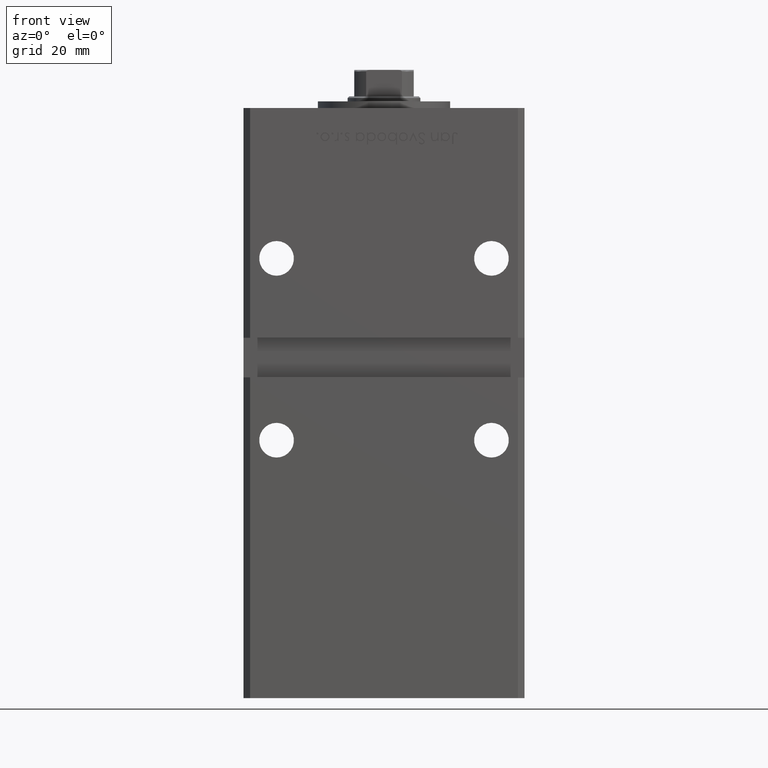
[diagram: clean part render]
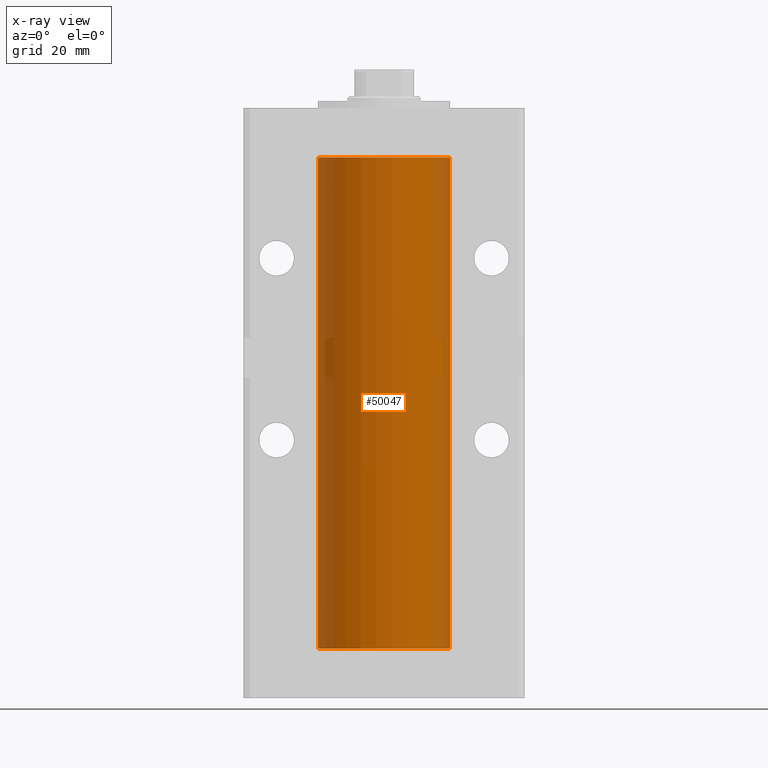
[diagram: x-ray — body ghosted, one internal face saturated and labeled with its STEP entity id]
A machine part, front view, then the same camera in x-ray: the body is ghosted and one INTERNAL B-rep face — a face not visible from any outside direction — is saturated and labeled: STEP entity #50047.
In plain terms, the highlighted cylindrical surface (partial cylindrical patch) has radius 20 mm, axis along (-0, -0, -1).
Its self-contained STEP definition (entity closure, byte-faithful):
#220 = VECTOR ( 'NONE', #41365, 1000.000000000000000 ) ;
#2378 = FACE_OUTER_BOUND ( 'NONE', #25528, .T. ) ;
#4046 = ORIENTED_EDGE ( 'NONE', *, *, #32560, .F. ) ;
#6415 = AXIS2_PLACEMENT_3D ( 'NONE', #35686, #39184, #6936 ) ;
#6936 = DIRECTION ( 'NONE',  ( -1.000000000000000000, 0.000000000000000000, 0.000000000000000000 ) ) ;
#7555 = CARTESIAN_POINT ( 'NONE',  ( -20.00000000000000000, 0.000000000000000000, 148.5000000000000000 ) ) ;
#8481 = VERTEX_POINT ( 'NONE', #13598 ) ;
#8987 = EDGE_CURVE ( 'NONE', #26773, #14562, #49118, .T. ) ;
#9015 = VERTEX_POINT ( 'NONE', #50027 ) ;
#9123 = LINE ( 'NONE', #49459, #220 ) ;
#9281 = CARTESIAN_POINT ( 'NONE',  ( 20.00000000000000000, 2.449293598294706513E-15, 148.5000000000000000 ) ) ;
#13598 = CARTESIAN_POINT ( 'NONE',  ( 20.00000000000000000, 2.449293598294706513E-15, 0.000000000000000000 ) ) ;
#14165 = CARTESIAN_POINT ( 'NONE',  ( 0.000000000000000000, 0.000000000000000000, 0.000000000000000000 ) ) ;
#14562 = VERTEX_POINT ( 'NONE', #9281 ) ;
#14931 = CARTESIAN_POINT ( 'NONE',  ( -20.00000000000000000, 0.000000000000000000, 148.5000000000000000 ) ) ;
#17899 = VECTOR ( 'NONE', #43140, 1000.000000000000000 ) ;
#22473 = DIRECTION ( 'NONE',  ( -0.000000000000000000, 0.000000000000000000, 1.000000000000000000 ) ) ;
#25528 = EDGE_LOOP ( 'NONE', ( #32510, #51997, #4046, #25901 ) ) ;
#25901 = ORIENTED_EDGE ( 'NONE', *, *, #28673, .F. ) ;
#26773 = VERTEX_POINT ( 'NONE', #7555 ) ;
#28673 = EDGE_CURVE ( 'NONE', #26773, #9015, #35081, .T. ) ;
#32510 = ORIENTED_EDGE ( 'NONE', *, *, #8987, .T. ) ;
#32560 = EDGE_CURVE ( 'NONE', #9015, #8481, #50656, .T. ) ;
#34313 = DIRECTION ( 'NONE',  ( 1.000000000000000000, 0.000000000000000000, 0.000000000000000000 ) ) ;
#35081 = LINE ( 'NONE', #14931, #17899 ) ;
#35686 = CARTESIAN_POINT ( 'NONE',  ( 0.000000000000000000, 0.000000000000000000, 148.5000000000000000 ) ) ;
#37129 = DIRECTION ( 'NONE',  ( -0.000000000000000000, 0.000000000000000000, 1.000000000000000000 ) ) ;
#39184 = DIRECTION ( 'NONE',  ( -0.000000000000000000, -0.000000000000000000, -1.000000000000000000 ) ) ;
#41365 = DIRECTION ( 'NONE',  ( -0.000000000000000000, -0.000000000000000000, -1.000000000000000000 ) ) ;
#41947 = CARTESIAN_POINT ( 'NONE',  ( 0.000000000000000000, 0.000000000000000000, 148.5000000000000000 ) ) ;
#42212 = DIRECTION ( 'NONE',  ( 1.000000000000000000, 0.000000000000000000, 0.000000000000000000 ) ) ;
#43140 = DIRECTION ( 'NONE',  ( -0.000000000000000000, -0.000000000000000000, -1.000000000000000000 ) ) ;
#43499 = CYLINDRICAL_SURFACE ( 'NONE', #6415, 20.00000000000000000 ) ;
#44696 = EDGE_CURVE ( 'NONE', #14562, #8481, #9123, .T. ) ;
#47441 = AXIS2_PLACEMENT_3D ( 'NONE', #41947, #37129, #42212 ) ;
#48085 = AXIS2_PLACEMENT_3D ( 'NONE', #14165, #22473, #34313 ) ;
#49118 = CIRCLE ( 'NONE', #47441, 20.00000000000000000 ) ;
#49459 = CARTESIAN_POINT ( 'NONE',  ( 20.00000000000000000, 2.449293598294706513E-15, 148.5000000000000000 ) ) ;
#50027 = CARTESIAN_POINT ( 'NONE',  ( -20.00000000000000000, 0.000000000000000000, 0.000000000000000000 ) ) ;
#50047 = ADVANCED_FACE ( 'NONE', ( #2378 ), #43499, .F. ) ;
#50656 = CIRCLE ( 'NONE', #48085, 20.00000000000000000 ) ;
#51997 = ORIENTED_EDGE ( 'NONE', *, *, #44696, .T. ) ;